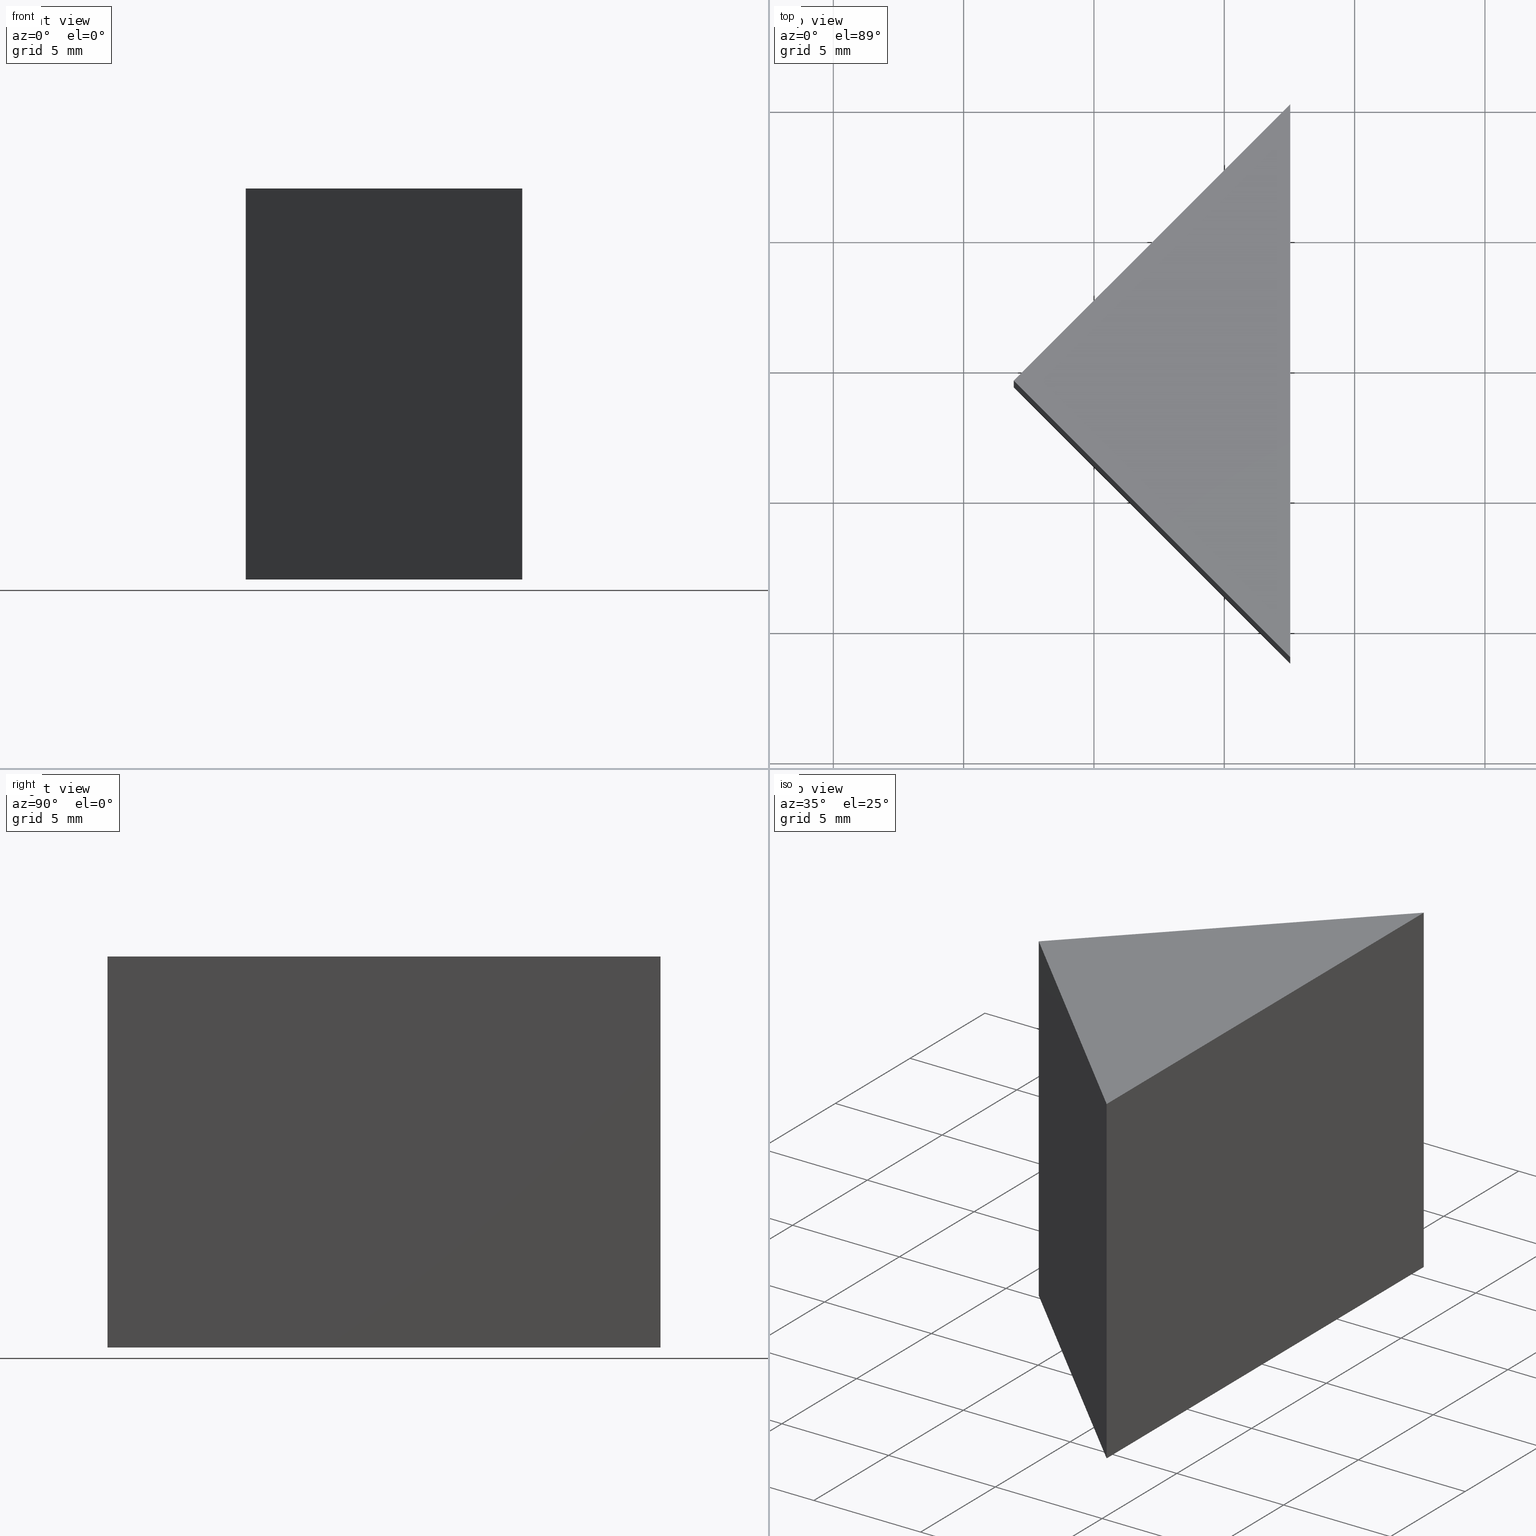
[diagram: canonical four-view strip — front | top / right | iso, engineering-drawing reading convention]
A machine part, canonical four-view strip (front | top / right | iso — engineering-drawing reading convention). The complete STEP part file that produces these views, byte-faithful:
ISO-10303-21;
HEADER;
FILE_DESCRIPTION (( 'STEP AP214' ),
    '1' );
FILE_NAME ('300003.STEP',
    '2019-08-12T08:01:14',
    ( '' ),
    ( '' ),
    'SwSTEP 2.0',
    'SolidWorks 2016',
    '' );
FILE_SCHEMA (( 'AUTOMOTIVE_DESIGN' ));
ENDSEC;

DATA;
#1 = APPLICATION_CONTEXT ( 'automotive_design' ) ;
#2 = MECHANICAL_DESIGN_GEOMETRIC_PRESENTATION_REPRESENTATION (  '', ( #118 ), #80 ) ;
#3 = EDGE_CURVE ( 'NONE', #21, #125, #105, .T. ) ;
#4 = STYLED_ITEM ( 'NONE', ( #161 ), #104 ) ;
#5 = CARTESIAN_POINT ( 'NONE',  ( 136.9239079285209500, 34.43923125474582000, 0.0000000000000000000 ) ) ;
#6 = LINE ( 'NONE', #136, #142 ) ;
#7 = DIRECTION ( 'NONE',  ( 0.7071067811865470200, 0.7071067811865481300, -0.0000000000000000000 ) ) ;
#8 = EDGE_CURVE ( 'NONE', #29, #125, #33, .T. ) ;
#9 = COLOUR_RGB ( '',1.000000000000000000, 1.000000000000000000, 1.000000000000000000 ) ;
#10 = CARTESIAN_POINT ( 'NONE',  ( 136.9239079285209500, 34.43923125474582000, 15.00000000000000000 ) ) ;
#11 =( LENGTH_UNIT ( ) NAMED_UNIT ( * ) SI_UNIT ( .MILLI., .METRE. ) );
#12 = UNCERTAINTY_MEASURE_WITH_UNIT (LENGTH_MEASURE( 1.000000000000000100E-005 ), #11, 'distance_accuracy_value', 'NONE');
#13 = FACE_OUTER_BOUND ( 'NONE', #123, .T. ) ;
#14 = PRESENTATION_LAYER_ASSIGNMENT (  '', '', ( #118 ) ) ;
#15 = EDGE_CURVE ( 'NONE', #52, #21, #54, .T. ) ;
#16 = PRODUCT_DEFINITION_SHAPE ( 'NONE', 'NONE',  #72 ) ;
#17 = FACE_OUTER_BOUND ( 'NONE', #44, .T. ) ;
#18 = ORIENTED_EDGE ( 'NONE', *, *, #15, .T. ) ;
#19 = EDGE_CURVE ( 'NONE', #125, #149, #96, .T. ) ;
#20 = CARTESIAN_POINT ( 'NONE',  ( 0.0000000000000000000, 0.0000000000000000000, 15.00000000000000000 ) ) ;
#21 = VERTEX_POINT ( 'NONE', #162 ) ;
#22 = DIRECTION ( 'NONE',  ( 0.7071067811865481300, -0.7071067811865470200, 0.0000000000000000000 ) ) ;
#23 = DIRECTION ( 'NONE',  ( 0.0000000000000000000, 0.0000000000000000000, 1.000000000000000000 ) ) ;
#24 = EDGE_LOOP ( 'NONE', ( #156, #70, #154, #168 ) ) ;
#25 = DIRECTION ( 'NONE',  ( -0.7071067811865484600, -0.7071067811865465700, 0.0000000000000000000 ) ) ;
#26 = FACE_OUTER_BOUND ( 'NONE', #64, .T. ) ;
#27 = ORIENTED_EDGE ( 'NONE', *, *, #8, .F. ) ;
#28 = EDGE_CURVE ( 'NONE', #164, #52, #75, .T. ) ;
#29 = VERTEX_POINT ( 'NONE', #5 ) ;
#30 = VECTOR ( 'NONE', #147, 1000.000000000000000 ) ;
#31 = UNCERTAINTY_MEASURE_WITH_UNIT (LENGTH_MEASURE( 1.000000000000000100E-005 ), #65, 'distance_accuracy_value', 'NONE');
#32 = LINE ( 'NONE', #111, #30 ) ;
#33 = LINE ( 'NONE', #90, #82 ) ;
#34 = CARTESIAN_POINT ( 'NONE',  ( 147.5305096463191600, 23.83262953694761100, 15.00000000000000000 ) ) ;
#35 = PLANE ( 'NONE',  #107 ) ;
#36 = CARTESIAN_POINT ( 'NONE',  ( 147.5305096463191600, 45.04583297254402700, 15.00000000000000000 ) ) ;
#37 = CARTESIAN_POINT ( 'NONE',  ( 0.0000000000000000000, 0.0000000000000000000, 0.0000000000000000000 ) ) ;
#38 = PLANE ( 'NONE',  #98 ) ;
#39 = VECTOR ( 'NONE', #100, 1000.000000000000000 ) ;
#40 = ADVANCED_FACE ( 'NONE', ( #17 ), #62, .F. ) ;
#41 = PRESENTATION_LAYER_ASSIGNMENT (  '', '', ( #4 ) ) ;
#42 = SURFACE_SIDE_STYLE ('',( #91 ) ) ;
#43 =( NAMED_UNIT ( * ) PLANE_ANGLE_UNIT ( ) SI_UNIT ( $, .RADIAN. ) );
#44 = EDGE_LOOP ( 'NONE', ( #89, #157, #50, #133 ) ) ;
#45 = CARTESIAN_POINT ( 'NONE',  ( 136.9239079285209500, 34.43923125474582000, 15.00000000000000000 ) ) ;
#46 = PRODUCT_DEFINITION_CONTEXT ( 'detailed design', #1, 'design' ) ;
#47 = LINE ( 'NONE', #10, #109 ) ;
#48 = DIRECTION ( 'NONE',  ( 1.000000000000000000, 0.0000000000000000000, -0.0000000000000000000 ) ) ;
#49 = CARTESIAN_POINT ( 'NONE',  ( 147.5305096463191600, 45.04583297254402700, 15.00000000000000000 ) ) ;
#50 = ORIENTED_EDGE ( 'NONE', *, *, #81, .F. ) ;
#51 = ADVANCED_FACE ( 'NONE', ( #83 ), #110, .T. ) ;
#52 = VERTEX_POINT ( 'NONE', #101 ) ;
#53 = ADVANCED_FACE ( 'NONE', ( #113 ), #35, .F. ) ;
#54 = LINE ( 'NONE', #45, #139 ) ;
#55 = PRODUCT_CONTEXT ( 'NONE', #132, 'mechanical' ) ;
#56 = APPLICATION_PROTOCOL_DEFINITION ( 'draft international standard', 'automotive_design', 1998, #1 ) ;
#57 = VECTOR ( 'NONE', #87, 1000.000000000000000 ) ;
#58 =( NAMED_UNIT ( * ) PLANE_ANGLE_UNIT ( ) SI_UNIT ( $, .RADIAN. ) );
#59 = AXIS2_PLACEMENT_3D ( 'NONE', #20, #88, #135 ) ;
#60 = ORIENTED_EDGE ( 'NONE', *, *, #15, .F. ) ;
#61 = UNCERTAINTY_MEASURE_WITH_UNIT (LENGTH_MEASURE( 1.000000000000000100E-005 ), #169, 'distance_accuracy_value', 'NONE');
#62 = PLANE ( 'NONE',  #71 ) ;
#63 = FILL_AREA_STYLE_COLOUR ( '', #119 ) ;
#64 = EDGE_LOOP ( 'NONE', ( #127, #74, #60, #121 ) ) ;
#65 =( LENGTH_UNIT ( ) NAMED_UNIT ( * ) SI_UNIT ( .MILLI., .METRE. ) );
#66 = CARTESIAN_POINT ( 'NONE',  ( 0.0000000000000000000, 0.0000000000000000000, 0.0000000000000000000 ) ) ;
#67 = PRODUCT ( '300003', '300003', '', ( #55 ) ) ;
#68 = SURFACE_STYLE_FILL_AREA ( #77 ) ;
#69 = ORIENTED_EDGE ( 'NONE', *, *, #28, .T. ) ;
#70 = ORIENTED_EDGE ( 'NONE', *, *, #166, .F. ) ;
#71 = AXIS2_PLACEMENT_3D ( 'NONE', #76, #144, #23 ) ;
#72 = PRODUCT_DEFINITION ( 'δ֪', '', #103, #46 ) ;
#73 = FILL_AREA_STYLE ('',( #165 ) ) ;
#74 = ORIENTED_EDGE ( 'NONE', *, *, #3, .F. ) ;
#75 = LINE ( 'NONE', #145, #57 ) ;
#76 = CARTESIAN_POINT ( 'NONE',  ( 147.5305096463191600, 23.83262953694761100, 15.00000000000000000 ) ) ;
#77 = FILL_AREA_STYLE ('',( #63 ) ) ;
#78 = DIRECTION ( 'NONE',  ( -0.7071067811865481300, 0.7071067811865470200, 0.0000000000000000000 ) ) ;
#79 = CARTESIAN_POINT ( 'NONE',  ( 147.5305096463191600, 45.04583297254402700, 0.0000000000000000000 ) ) ;
#80 =( GEOMETRIC_REPRESENTATION_CONTEXT ( 3 ) GLOBAL_UNCERTAINTY_ASSIGNED_CONTEXT ( ( #61 ) ) GLOBAL_UNIT_ASSIGNED_CONTEXT ( ( #169, #58, #99 ) ) REPRESENTATION_CONTEXT ( 'NONE', 'WORKASPACE' ) );
#81 = EDGE_CURVE ( 'NONE', #21, #164, #32, .T. ) ;
#82 = VECTOR ( 'NONE', #143, 1000.000000000000000 ) ;
#83 = FACE_OUTER_BOUND ( 'NONE', #95, .T. ) ;
#84 = DIRECTION ( 'NONE',  ( 0.0000000000000000000, 0.0000000000000000000, 1.000000000000000000 ) ) ;
#85 = SHAPE_DEFINITION_REPRESENTATION ( #16, #115 ) ;
#86 = AXIS2_PLACEMENT_3D ( 'NONE', #66, #122, #48 ) ;
#87 = DIRECTION ( 'NONE',  ( -0.7071067811865484600, -0.7071067811865465700, 0.0000000000000000000 ) ) ;
#88 = DIRECTION ( 'NONE',  ( 0.0000000000000000000, -0.0000000000000000000, 1.000000000000000000 ) ) ;
#89 = ORIENTED_EDGE ( 'NONE', *, *, #19, .T. ) ;
#90 = CARTESIAN_POINT ( 'NONE',  ( 136.9239079285209500, 34.43923125474582000, 0.0000000000000000000 ) ) ;
#91 = SURFACE_STYLE_FILL_AREA ( #73 ) ;
#92 = CARTESIAN_POINT ( 'NONE',  ( 147.5305096463191600, 23.83262953694761100, 0.0000000000000000000 ) ) ;
#93 = DIRECTION ( 'NONE',  ( -0.0000000000000000000, -0.0000000000000000000, -1.000000000000000000 ) ) ;
#94 = DIRECTION ( 'NONE',  ( 0.7071067811865485700, 0.7071067811865465700, 0.0000000000000000000 ) ) ;
#95 = EDGE_LOOP ( 'NONE', ( #160, #69, #18 ) ) ;
#96 = LINE ( 'NONE', #120, #129 ) ;
#97 = MECHANICAL_DESIGN_GEOMETRIC_PRESENTATION_REPRESENTATION (  '', ( #4 ), #155 ) ;
#98 = AXIS2_PLACEMENT_3D ( 'NONE', #126, #7, #78 ) ;
#99 =( NAMED_UNIT ( * ) SI_UNIT ( $, .STERADIAN. ) SOLID_ANGLE_UNIT ( ) );
#100 = DIRECTION ( 'NONE',  ( -0.0000000000000000000, -0.0000000000000000000, -1.000000000000000000 ) ) ;
#101 = CARTESIAN_POINT ( 'NONE',  ( 136.9239079285209500, 34.43923125474582000, 15.00000000000000000 ) ) ;
#102 = PLANE ( 'NONE',  #86 ) ;
#103 = PRODUCT_DEFINITION_FORMATION_WITH_SPECIFIED_SOURCE ( '�κ�', '', #67, .NOT_KNOWN. ) ;
#104 = MANIFOLD_SOLID_BREP ( '͹̨-����1', #116 ) ;
#105 = LINE ( 'NONE', #34, #39 ) ;
#106 = AXIS2_PLACEMENT_3D ( 'NONE', #37, #84, #131 ) ;
#107 = AXIS2_PLACEMENT_3D ( 'NONE', #36, #150, #94 ) ;
#108 = DIRECTION ( 'NONE',  ( 0.0000000000000000000, 1.000000000000000000, 0.0000000000000000000 ) ) ;
#109 = VECTOR ( 'NONE', #163, 1000.000000000000000 ) ;
#110 = PLANE ( 'NONE',  #59 ) ;
#111 = CARTESIAN_POINT ( 'NONE',  ( 147.5305096463191600, 23.83262953694761100, 15.00000000000000000 ) ) ;
#112 = LINE ( 'NONE', #124, #140 ) ;
#113 = FACE_OUTER_BOUND ( 'NONE', #24, .T. ) ;
#114 = PRODUCT_RELATED_PRODUCT_CATEGORY ( 'part', '', ( #67 ) ) ;
#115 = ADVANCED_BREP_SHAPE_REPRESENTATION ( '300003', ( #104, #106 ), #134 ) ;
#116 = CLOSED_SHELL ( 'NONE', ( #40, #53, #128, #51, #153 ) ) ;
#117 = SURFACE_STYLE_USAGE ( .BOTH. , #42 ) ;
#118 = STYLED_ITEM ( 'NONE', ( #141 ), #115 ) ;
#119 = COLOUR_RGB ( '',1.000000000000000000, 1.000000000000000000, 1.000000000000000000 ) ;
#120 = CARTESIAN_POINT ( 'NONE',  ( 147.5305096463191600, 23.83262953694761100, 0.0000000000000000000 ) ) ;
#121 = ORIENTED_EDGE ( 'NONE', *, *, #166, .T. ) ;
#122 = DIRECTION ( 'NONE',  ( 0.0000000000000000000, -0.0000000000000000000, 1.000000000000000000 ) ) ;
#123 = EDGE_LOOP ( 'NONE', ( #146, #27, #152 ) ) ;
#124 = CARTESIAN_POINT ( 'NONE',  ( 147.5305096463191600, 45.04583297254402700, 0.0000000000000000000 ) ) ;
#125 = VERTEX_POINT ( 'NONE', #92 ) ;
#126 = CARTESIAN_POINT ( 'NONE',  ( 136.9239079285209500, 34.43923125474582000, 15.00000000000000000 ) ) ;
#127 = ORIENTED_EDGE ( 'NONE', *, *, #8, .T. ) ;
#128 = ADVANCED_FACE ( 'NONE', ( #26 ), #38, .F. ) ;
#129 = VECTOR ( 'NONE', #108, 1000.000000000000000 ) ;
#130 = APPLICATION_PROTOCOL_DEFINITION ( 'draft international standard', 'automotive_design', 1998, #132 ) ;
#131 = DIRECTION ( 'NONE',  ( 1.000000000000000000, 0.0000000000000000000, 0.0000000000000000000 ) ) ;
#132 = APPLICATION_CONTEXT ( 'automotive_design' ) ;
#133 = ORIENTED_EDGE ( 'NONE', *, *, #3, .T. ) ;
#134 =( GEOMETRIC_REPRESENTATION_CONTEXT ( 3 ) GLOBAL_UNCERTAINTY_ASSIGNED_CONTEXT ( ( #12 ) ) GLOBAL_UNIT_ASSIGNED_CONTEXT ( ( #11, #43, #158 ) ) REPRESENTATION_CONTEXT ( 'NONE', 'WORKASPACE' ) );
#135 = DIRECTION ( 'NONE',  ( 1.000000000000000000, 0.0000000000000000000, -0.0000000000000000000 ) ) ;
#136 = CARTESIAN_POINT ( 'NONE',  ( 147.5305096463191600, 45.04583297254402700, 15.00000000000000000 ) ) ;
#137 =( NAMED_UNIT ( * ) PLANE_ANGLE_UNIT ( ) SI_UNIT ( $, .RADIAN. ) );
#138 = SURFACE_STYLE_USAGE ( .BOTH. , #151 ) ;
#139 = VECTOR ( 'NONE', #22, 1000.000000000000000 ) ;
#140 = VECTOR ( 'NONE', #25, 1000.000000000000000 ) ;
#141 = PRESENTATION_STYLE_ASSIGNMENT (( #117 ) ) ;
#142 = VECTOR ( 'NONE', #93, 1000.000000000000000 ) ;
#143 = DIRECTION ( 'NONE',  ( 0.7071067811865481300, -0.7071067811865470200, 0.0000000000000000000 ) ) ;
#144 = DIRECTION ( 'NONE',  ( -1.000000000000000000, 0.0000000000000000000, 0.0000000000000000000 ) ) ;
#145 = CARTESIAN_POINT ( 'NONE',  ( 147.5305096463191600, 45.04583297254402700, 15.00000000000000000 ) ) ;
#146 = ORIENTED_EDGE ( 'NONE', *, *, #19, .F. ) ;
#147 = DIRECTION ( 'NONE',  ( 0.0000000000000000000, 1.000000000000000000, 0.0000000000000000000 ) ) ;
#148 =( NAMED_UNIT ( * ) SI_UNIT ( $, .STERADIAN. ) SOLID_ANGLE_UNIT ( ) );
#149 = VERTEX_POINT ( 'NONE', #79 ) ;
#150 = DIRECTION ( 'NONE',  ( 0.7071067811865465700, -0.7071067811865485700, 0.0000000000000000000 ) ) ;
#151 = SURFACE_SIDE_STYLE ('',( #68 ) ) ;
#152 = ORIENTED_EDGE ( 'NONE', *, *, #167, .F. ) ;
#153 = ADVANCED_FACE ( 'NONE', ( #13 ), #102, .F. ) ;
#154 = ORIENTED_EDGE ( 'NONE', *, *, #28, .F. ) ;
#155 =( GEOMETRIC_REPRESENTATION_CONTEXT ( 3 ) GLOBAL_UNCERTAINTY_ASSIGNED_CONTEXT ( ( #31 ) ) GLOBAL_UNIT_ASSIGNED_CONTEXT ( ( #65, #137, #148 ) ) REPRESENTATION_CONTEXT ( 'NONE', 'WORKASPACE' ) );
#156 = ORIENTED_EDGE ( 'NONE', *, *, #167, .T. ) ;
#157 = ORIENTED_EDGE ( 'NONE', *, *, #159, .F. ) ;
#158 =( NAMED_UNIT ( * ) SI_UNIT ( $, .STERADIAN. ) SOLID_ANGLE_UNIT ( ) );
#159 = EDGE_CURVE ( 'NONE', #164, #149, #6, .T. ) ;
#160 = ORIENTED_EDGE ( 'NONE', *, *, #81, .T. ) ;
#161 = PRESENTATION_STYLE_ASSIGNMENT (( #138 ) ) ;
#162 = CARTESIAN_POINT ( 'NONE',  ( 147.5305096463191600, 23.83262953694761100, 15.00000000000000000 ) ) ;
#163 = DIRECTION ( 'NONE',  ( -0.0000000000000000000, -0.0000000000000000000, -1.000000000000000000 ) ) ;
#164 = VERTEX_POINT ( 'NONE', #49 ) ;
#165 = FILL_AREA_STYLE_COLOUR ( '', #9 ) ;
#166 = EDGE_CURVE ( 'NONE', #52, #29, #47, .T. ) ;
#167 = EDGE_CURVE ( 'NONE', #149, #29, #112, .T. ) ;
#168 = ORIENTED_EDGE ( 'NONE', *, *, #159, .T. ) ;
#169 =( LENGTH_UNIT ( ) NAMED_UNIT ( * ) SI_UNIT ( .MILLI., .METRE. ) );
ENDSEC;
END-ISO-10303-21;
